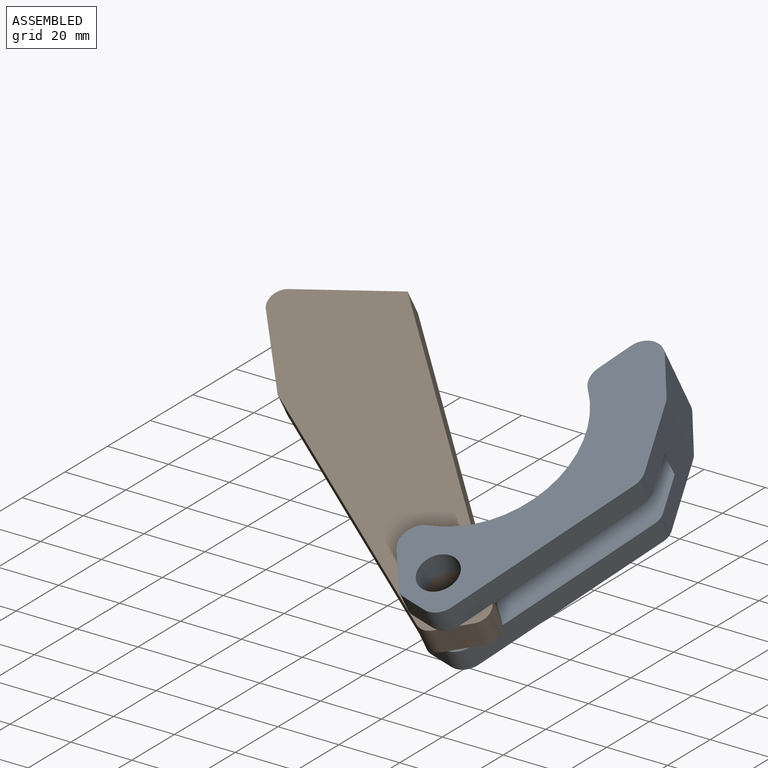
[diagram: assembled view]
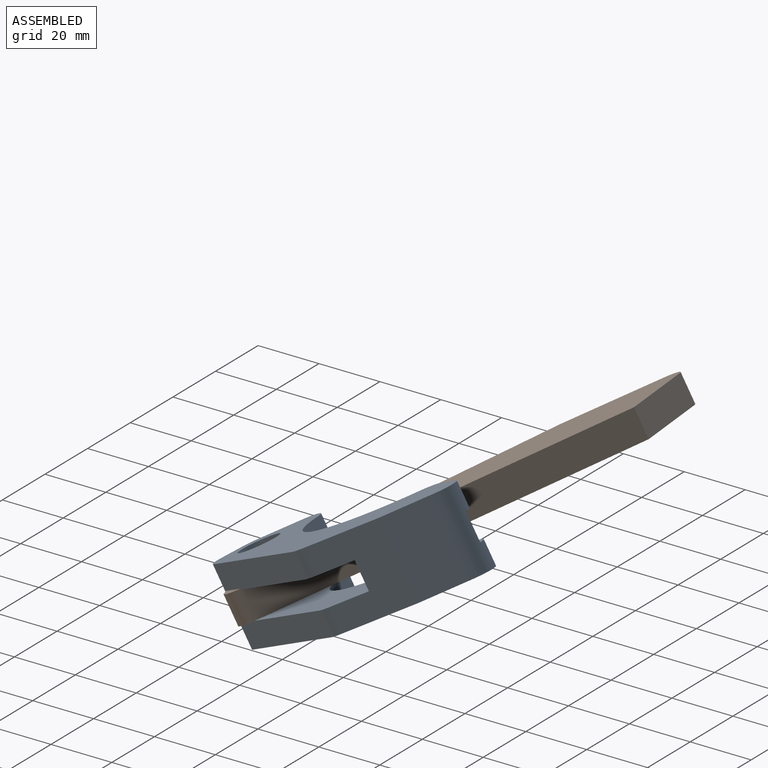
[diagram: assembled view, second angle]
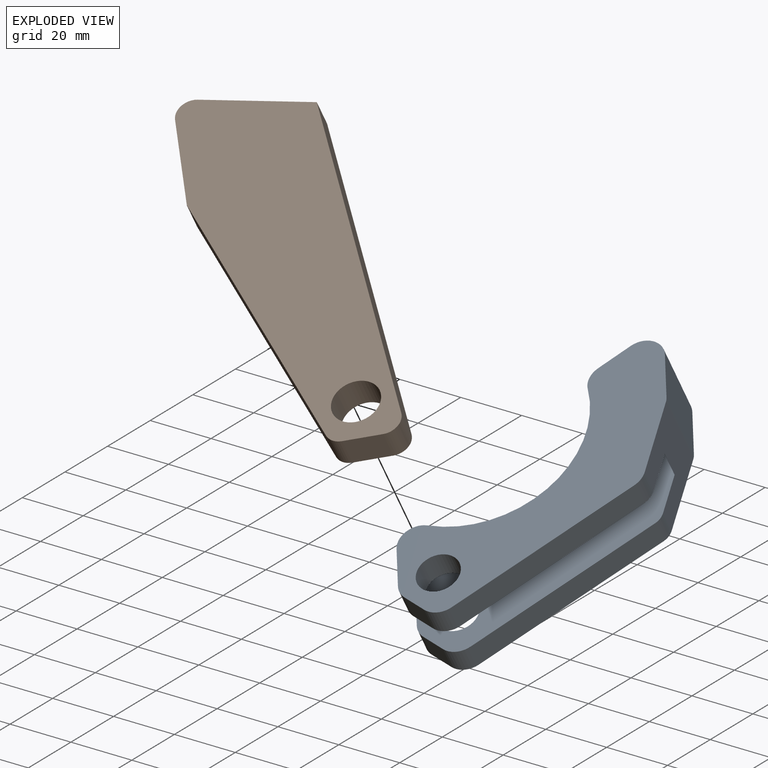
[diagram: exploded view]
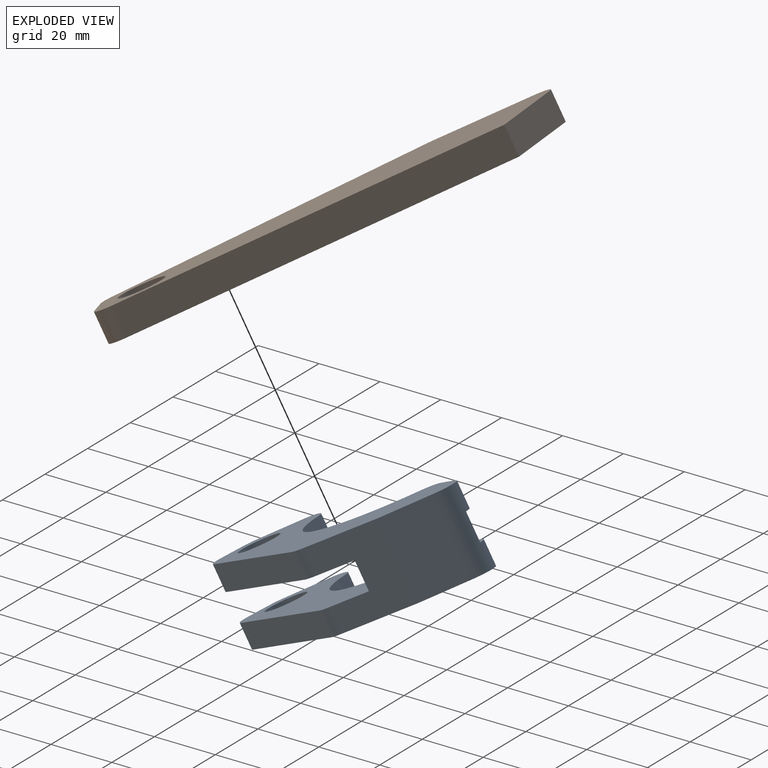
[diagram: exploded view, second angle]
ASSEMBLY  parts=2 mates=2
PART A: 31 faces, bbox 79x76.9x25.4 mm
  f0: plane 9.28x8.25mm, normal (-0.87,-0.49,0), area 88mm2, adj f14,f16,f29,f30
  f1: cylinder r=32.82mm len=46.5mm, axis (0,0,-1), area 587.1mm2, adj f14,f16,f23,f30
  f2: plane 13.18x8.25mm, normal (0,-1,0), area 108.7mm2, adj f14,f16,f23,f26
  f3: plane 8.25x5.73mm, normal (0.68,-0.73,0), area 64.6mm2, adj f14,f16,f26,f27
  f4: plane 52.28x28.69mm, normal (0.88,0.48,0), area 492mm2, adj f14,f16,f19,f27
  f5: plane 25.4x23.33mm, normal (0.28,0.96,0), area 493.8mm2, adj f14,f15,f16,f17,f18,f19,f20,f21
  f6: cylinder r=6.35mm len=12.7mm, axis (0,0,-1), area 329.1mm2, adj f14,f16
  f7: plane 9.28x7.94mm, normal (-0.87,-0.49,0), area 84.7mm2, adj f15,f17,f28,f29
  f8: cylinder r=32.82mm len=46.5mm, axis (0,0,-1), area 564.9mm2, adj f15,f17,f22,f28
  f9: plane 13.18x7.94mm, normal (0,-1,0), area 104.6mm2, adj f15,f17,f22,f24
  f10: plane 7.94x5.73mm, normal (0.68,-0.73,0), area 62.2mm2, adj f15,f17,f24,f25
  f11: plane 52.74x28.95mm, normal (0.88,0.48,0), area 477.5mm2, adj f15,f17,f20,f25
  f12: plane 25.4x15.16mm, normal (0,1,0), area 385mm2, adj f14,f15,f21,f29
  f13: cylinder r=6.35mm len=12.7mm, axis (0,0,-1), area 316.7mm2, adj f15,f17
  f14: plane 79.01x76.93mm, normal (0,0,1), area 2092.5mm2, adj f0,f1,f2,f3,f4,f5,f6,f12
  f15: plane 79.01x76.93mm, normal (0,0,-1), area 2092.8mm2, adj f5,f7,f8,f9,f10,f11,f12,f13
  f16: plane 79.01x73.54mm, normal (0,0,-1), area 2005.4mm2, adj f0,f1,f2,f3,f4,f5,f6,f18
  f17: plane 79.01x73.54mm, normal (0,0,1), area 2005.7mm2, adj f5,f7,f8,f9,f10,f11,f13,f18
  f18: plane 33.12x9.21mm, normal (0,-1,0), area 305.1mm2, adj f5,f16,f17,f29
  f19: cylinder r=6.35mm len=8.25mm, axis (0,0,-1), area 41.1mm2, adj f4,f5,f14,f16
  f20: cylinder r=5.08mm len=7.94mm, axis (0,0,-1), area 31.7mm2, adj f5,f11,f15,f17
  f21: cylinder r=5.08mm len=25.4mm, axis (0,0,-1), area 36.6mm2, adj f5,f12,f14,f15
  f22: cylinder r=6.35mm len=9mm, axis (0,0,-1), area 100.9mm2, adj f8,f9,f15,f17
  f23: cylinder r=6.35mm len=9mm, axis (0,0,-1), area 104.8mm2, adj f1,f2,f14,f16
  f24: cylinder r=6.35mm len=7.94mm, axis (0,0,-1), area 37.8mm2, adj f9,f10,f15,f17
  f25: cylinder r=6.35mm len=7.94mm, axis (0,0,-1), area 66.7mm2, adj f10,f11,f15,f17
  f26: cylinder r=6.35mm len=8.25mm, axis (0,0,-1), area 39.3mm2, adj f2,f3,f14,f16
  f27: cylinder r=6.35mm len=8.25mm, axis (0,0,-1), area 69.3mm2, adj f3,f4,f14,f16
  f28: cylinder r=6.35mm len=7.94mm, axis (0,0,-1), area 61.6mm2, adj f7,f8,f15,f17
  f29: cylinder r=6.35mm len=25.4mm, axis (0,0,-1), area 278.1mm2, adj f0,f7,f12,f14,f15,f16,f17,f18
  f30: cylinder r=6.35mm len=8.25mm, axis (0,0,-1), area 64mm2, adj f0,f1,f14,f16
PART B: 11 faces, bbox 117.4x99.4x9.5 mm
  f0: plane 79.7x56.33mm, normal (-0.58,-0.82,0), area 929.6mm2, adj f4,f5,f6,f8
  f1: plane 10.07x9.53mm, normal (0.5,-0.87,0), area 110.4mm2, adj f5,f6,f8,f9
  f2: plane 85.12x79.17mm, normal (0.73,0.68,0), area 1107.3mm2, adj f3,f5,f6,f9
  f3: plane 33.26x9.77mm, normal (-0.28,0.96,0), area 330.2mm2, adj f2,f5,f6,f7
  f4: plane 24.42x18.62mm, normal (-0.8,-0.61,0), area 292.5mm2, adj f0,f5,f6,f7
  f5: plane 117.44x99.4mm, normal (0,0,1), area 4072.1mm2, adj f0,f1,f2,f3,f4,f7,f8,f9
  f6: plane 117.44x99.4mm, normal (0,0,-1), area 4072.1mm2, adj f0,f1,f2,f3,f4,f7,f8,f9
  f7: cylinder r=5.08mm len=9.53mm, axis (0,0,1), area 93.7mm2, adj f3,f4,f5,f6
  f8: cylinder r=5.08mm len=9.53mm, axis (0,0,-1), area 54.8mm2, adj f0,f1,f5,f6
  f9: cylinder r=5.08mm len=9.53mm, axis (0,0,-1), area 87.2mm2, adj f1,f2,f5,f6
  f10: cylinder r=7.07mm len=14.14mm, axis (0,0,-1), area 423mm2, adj f5,f6
PLACE A rot(axis=(0.43,0.24,-0.87),64.1deg) t=(15.16,14.39,38.57)mm
PLACE B rot(axis=(1,0,0),30.4deg) t=(-18.83,3.06,41.13)mm fixed
MATE planar B.f10 <-> A.f6  axis (0,0.51,-0.86) through (17.33,-20.67,27.2)mm
MATE cylindrical B.f10 <-> A.f6  axis (0,0.51,-0.86) through (17.33,-25.49,35.41)mm
